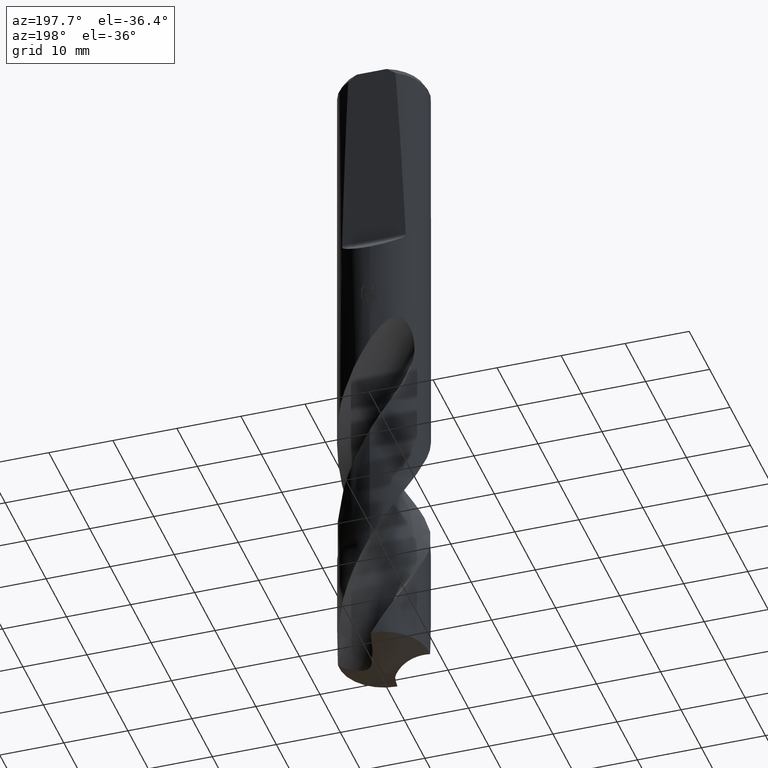
[diagram: clean part render]
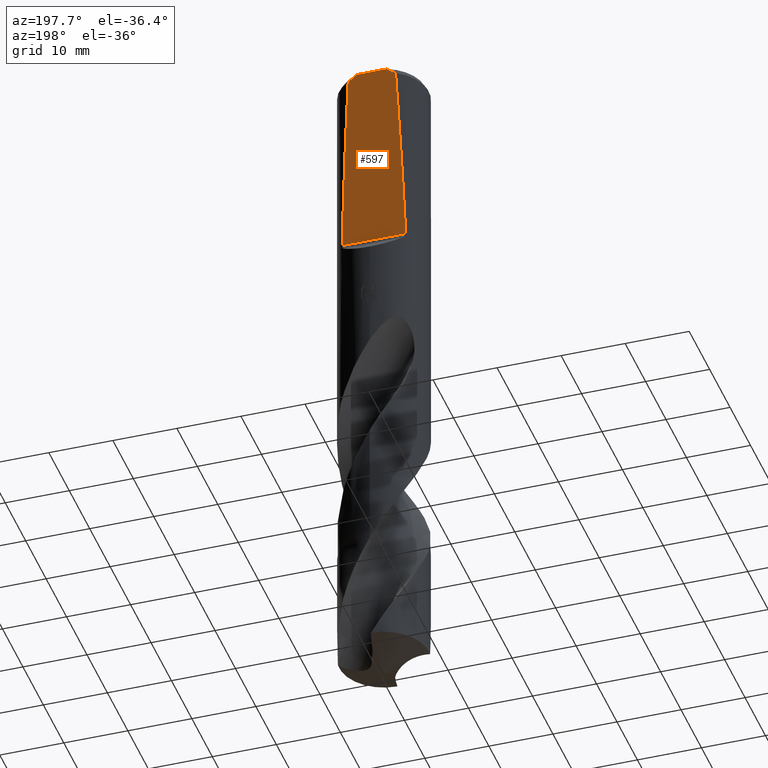
[diagram: same view with one face highlighted and labeled with its STEP entity id]
A machine part, auxiliary view. The second image highlights one B-rep face of the part: STEP entity #597.
In plain terms, the highlighted planar face has unit normal (0, -0.9994, 0.0349).
Its self-contained STEP definition (entity closure, byte-faithful):
#339=VERTEX_POINT('',#859);
#345=VERTEX_POINT('',#865);
#403=VERTEX_POINT('',#928);
#561=EDGE_CURVE('',#751,#339,#1095,.T.);
#577=EDGE_CURVE('',#339,#403,#1114,.T.);
#597=ADVANCED_FACE('',(#1135),#1136,.F.);
#651=EDGE_CURVE('',#403,#749,#1199,.T.);
#675=EDGE_CURVE('',#749,#725,#1228,.T.);
#709=EDGE_CURVE('',#345,#751,#1265,.T.);
#725=VERTEX_POINT('',#1281);
#749=VERTEX_POINT('',#1308);
#751=VERTEX_POINT('',#1310);
#771=EDGE_CURVE('',#725,#345,#1330,.T.);
#859=CARTESIAN_POINT('',(4.97056559808667,4.92884140900449,-30.2649660915861));
#865=CARTESIAN_POINT('',(-3.68619322486681,5.95079654407257,-1.0));
#928=CARTESIAN_POINT('',(3.68619322486681,5.95079654407257,-1.0));
#1095=LINE('',#4524,#4525);
#1114=ELLIPSE('',#5023,200.575958434908,7.0);
#1135=FACE_OUTER_BOUND('',#5092,.T.);
#1136=PLANE('',#5093);
#1199=(B_SPLINE_CURVE(2,(#5981,#5982,#5983),.UNSPECIFIED.,.F.,.F.)B_SPLINE_CURVE_WITH_KNOTS((3,3),(0.0,1.6882889037096),.UNSPECIFIED.)RATIONAL_B_SPLINE_CURVE((1.0,1.00462212989548,1.0))BOUNDED_CURVE()REPRESENTATION_ITEM('')GEOMETRIC_REPRESENTATION_ITEM()CURVE());
#1228=LINE('',#6327,#6328);
#1265=ELLIPSE('',#6712,200.575958434908,7.0);
#1281=CARTESIAN_POINT('',(-2.32843677319676,5.98571731356432,0.0));
#1308=CARTESIAN_POINT('',(2.32843677319676,5.98571731356432,0.0));
#1310=CARTESIAN_POINT('',(-4.97056559808667,4.92884140900449,-30.2649660915861));
#1330=(B_SPLINE_CURVE(2,(#7497,#7498,#7499),.UNSPECIFIED.,.F.,.F.)B_SPLINE_CURVE_WITH_KNOTS((3,3),(0.0,1.6882889037096),.UNSPECIFIED.)RATIONAL_B_SPLINE_CURVE((1.0,1.00462212989548,1.0))BOUNDED_CURVE()REPRESENTATION_ITEM('')GEOMETRIC_REPRESENTATION_ITEM()CURVE());
#4524=CARTESIAN_POINT('',(-7.0,4.92884140900449,-30.2649660915861));
#4525=VECTOR('',#7757,1.0);
#5023=AXIS2_PLACEMENT_3D('',#7781,#7782,#7783);
#5092=EDGE_LOOP('',(#7805,#7806,#7807,#7808,#7809,#7810));
#5093=AXIS2_PLACEMENT_3D('',#7811,#7812,#7813);
#5981=CARTESIAN_POINT('',(3.6861932248668,5.95079654407257,-1.0));
#5982=CARTESIAN_POINT('',(2.97970616247006,5.97219847635254,-0.387128846487044));
#5983=CARTESIAN_POINT('',(2.32843677319676,5.98571731356432,0.0));
#6327=CARTESIAN_POINT('',(-3.5,5.98571731356432,1.77635683940025E-015));
#6328=VECTOR('',#7957,1.0);
#6712=AXIS2_PLACEMENT_3D('',#7998,#7999,#8000);
#7497=CARTESIAN_POINT('',(-2.32843677319676,5.98571731356432,0.0));
#7498=CARTESIAN_POINT('',(-2.97970616247006,5.97219847635254,-0.387128846487044));
#7499=CARTESIAN_POINT('',(-3.6861932248668,5.95079654407257,-1.0));
#7757=DIRECTION('',(1.0,0.0,0.0));
#7781=CARTESIAN_POINT('',(0.0,0.0,-171.408517071162));
#7782=DIRECTION('',(0.0,-0.999390827019096,0.0348994967025007));
#7783=DIRECTION('',(0.0,0.0348994967025007,0.999390827019096));
#7805=ORIENTED_EDGE('',*,*,#709,.F.);
#7806=ORIENTED_EDGE('',*,*,#771,.F.);
#7807=ORIENTED_EDGE('',*,*,#675,.F.);
#7808=ORIENTED_EDGE('',*,*,#651,.F.);
#7809=ORIENTED_EDGE('',*,*,#577,.F.);
#7810=ORIENTED_EDGE('',*,*,#561,.F.);
#7811=CARTESIAN_POINT('',(-7.0,4.92884140900449,-30.2649660915861));
#7812=DIRECTION('',(0.0,-0.999390827019096,0.0348994967025007));
#7813=DIRECTION('',(0.0,-0.0348994967025007,-0.999390827019096));
#7957=DIRECTION('',(-1.0,0.0,0.0));
#7998=CARTESIAN_POINT('',(0.0,0.0,-171.408517071162));
#7999=DIRECTION('',(0.0,-0.999390827019096,0.0348994967025007));
#8000=DIRECTION('',(0.0,0.0348994967025007,0.999390827019096));